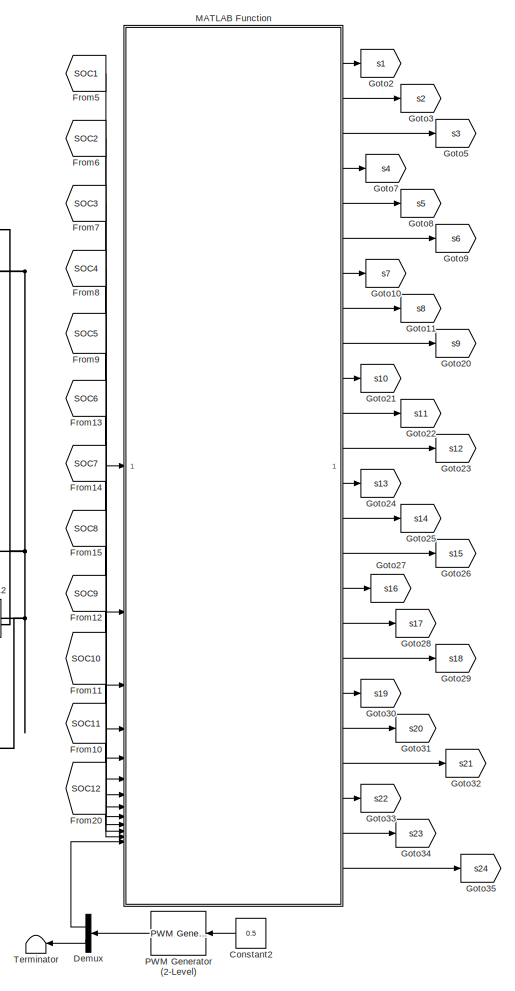
[diagram: root canvas - part 1/3, middle right region]
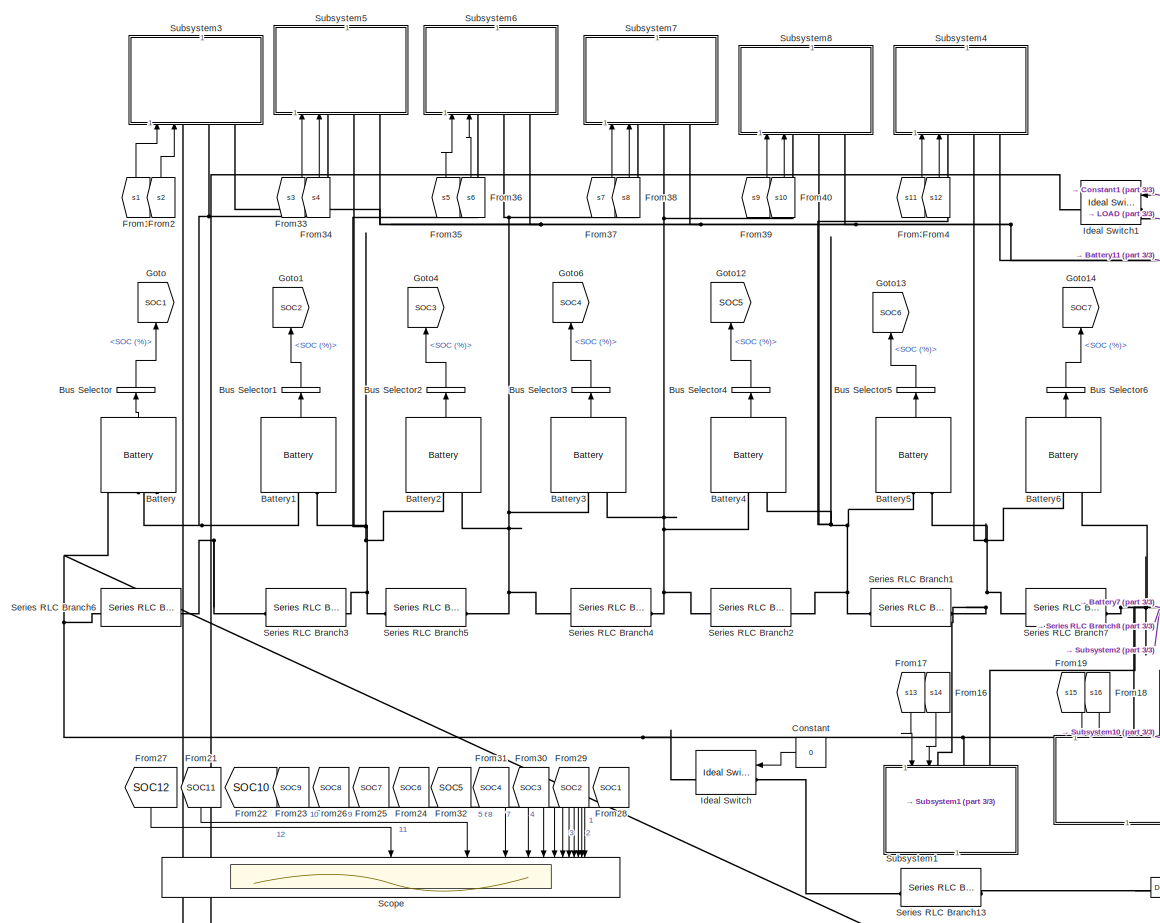
[diagram: root canvas - part 2/3, top left region]
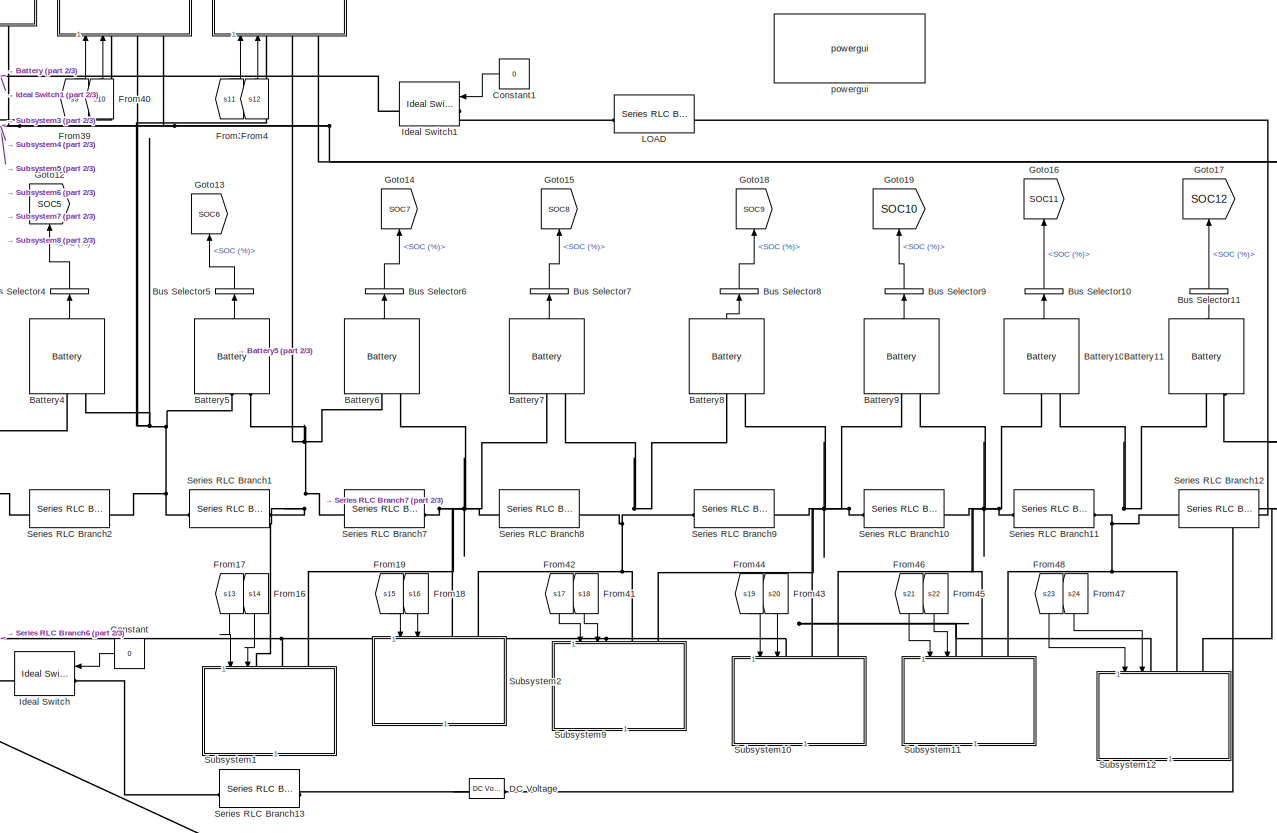
[diagram: root canvas - part 3/3, central region]
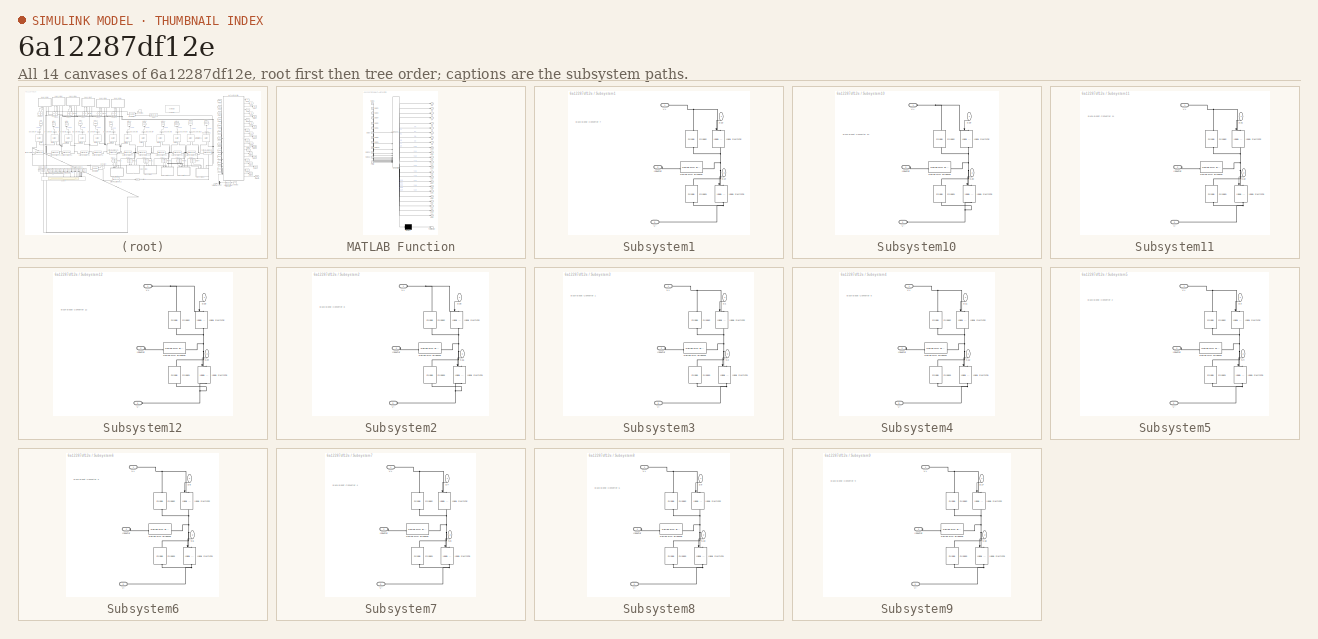
[diagram: thumbnail index - all 14 canvases of the model, root first then tree order]
MODEL slx_6a12287df12e
KIND model
CONFIG AbsTol = auto
CONFIG EnableMultiTasking = off
CONFIG FixedStep = auto
CONFIG MaxStep = 1e-4
CONFIG MinStep = 1e-5
CONFIG RelTol = 1e-3
CONFIG SampleTimeConstraint = Unconstrained
CONFIG SolverName = VariableStepAuto
CONFIG StartTime = 0.0
CONFIG StopTime = 300
BLOCK [Reference] Battery  REF=spsBatteryLib/Battery
  NameLocation = left
  SourceBlock = spsBatteryLib/Battery
  SourceType = Battery
BLOCK [Reference] Battery1  REF=spsBatteryLib/Battery
  NameLocation = left
  SourceBlock = spsBatteryLib/Battery
  SourceType = Battery
BLOCK [Reference] Battery10  REF=spsBatteryLib/Battery
  NameLocation = left
  SourceBlock = spsBatteryLib/Battery
  SourceType = Battery
BLOCK [Reference] Battery11  REF=spsBatteryLib/Battery
  NameLocation = left
  SourceBlock = spsBatteryLib/Battery
  SourceType = Battery
BLOCK [Reference] Battery2  REF=spsBatteryLib/Battery
  NameLocation = left
  SourceBlock = spsBatteryLib/Battery
  SourceType = Battery
BLOCK [Reference] Battery3  REF=spsBatteryLib/Battery
  NameLocation = left
  SourceBlock = spsBatteryLib/Battery
  SourceType = Battery
BLOCK [Reference] Battery4  REF=spsBatteryLib/Battery
  NameLocation = left
  SourceBlock = spsBatteryLib/Battery
  SourceType = Battery
BLOCK [Reference] Battery5  REF=spsBatteryLib/Battery
  NameLocation = left
  SourceBlock = spsBatteryLib/Battery
  SourceType = Battery
BLOCK [Reference] Battery6  REF=spsBatteryLib/Battery
  NameLocation = left
  SourceBlock = spsBatteryLib/Battery
  SourceType = Battery
BLOCK [Reference] Battery7  REF=spsBatteryLib/Battery
  NameLocation = left
  SourceBlock = spsBatteryLib/Battery
  SourceType = Battery
BLOCK [Reference] Battery8  REF=spsBatteryLib/Battery
  NameLocation = left
  SourceBlock = spsBatteryLib/Battery
  SourceType = Battery
BLOCK [Reference] Battery9  REF=spsBatteryLib/Battery
  NameLocation = left
  SourceBlock = spsBatteryLib/Battery
  SourceType = Battery
BLOCK [BusSelector] Bus Selector
  NameLocation = right
  OutputSignals = SOC (%)
BLOCK [BusSelector] Bus Selector1
  NameLocation = right
  OutputSignals = SOC (%)
BLOCK [BusSelector] Bus Selector10
  NameLocation = right
  OutputSignals = SOC (%)
BLOCK [BusSelector] Bus Selector11
  NameLocation = right
  OutputSignals = SOC (%)
BLOCK [BusSelector] Bus Selector2
  NameLocation = right
  OutputSignals = SOC (%)
BLOCK [BusSelector] Bus Selector3
  NameLocation = right
  OutputSignals = SOC (%)
BLOCK [BusSelector] Bus Selector4
  NameLocation = right
  OutputSignals = SOC (%)
BLOCK [BusSelector] Bus Selector5
  NameLocation = right
  OutputSignals = SOC (%)
BLOCK [BusSelector] Bus Selector6
  NameLocation = right
  OutputSignals = SOC (%)
BLOCK [BusSelector] Bus Selector7
  NameLocation = right
  OutputSignals = SOC (%)
BLOCK [BusSelector] Bus Selector8
  NameLocation = right
  OutputSignals = SOC (%)
BLOCK [BusSelector] Bus Selector9
  NameLocation = right
  OutputSignals = SOC (%)
BLOCK [Constant] Constant
  Value = 0
BLOCK [Constant] Constant1
  Value = 0
BLOCK [Constant] Constant2
  Value = 0.5
BLOCK [Reference] DC Voltage  REF=spsDCVoltageSourceLib/DC Voltage Source
  LibrarySourceBlock = sps_lib/Sources/DC Voltage Source
  NameLocation = right
  SourceBlock = spsDCVoltageSourceLib/DC Voltage Source
  SourceType = DC Voltage Source
BLOCK [Demux] Demux
  Outputs = 2
BLOCK [From] From1
  GotoTag = s1
  NameLocation = right
BLOCK [From] From10
  GotoTag = SOC11
  NameLocation = top
BLOCK [From] From11
  GotoTag = SOC10
  NameLocation = top
BLOCK [From] From12
  GotoTag = SOC9
  NameLocation = top
BLOCK [From] From13
  GotoTag = SOC6
  NameLocation = top
BLOCK [From] From14
  GotoTag = SOC7
  NameLocation = top
BLOCK [From] From15
  GotoTag = SOC8
  NameLocation = top
BLOCK [From] From16
  GotoTag = s14
  NameLocation = left
BLOCK [From] From17
  GotoTag = s13
  NameLocation = left
BLOCK [From] From18
  GotoTag = s16
  NameLocation = left
BLOCK [From] From19
  GotoTag = s15
  NameLocation = left
BLOCK [From] From2
  GotoTag = s2
  NameLocation = right
BLOCK [From] From20
  GotoTag = SOC12
  NameLocation = top
BLOCK [From] From21
  GotoTag = SOC11
  NameLocation = right
BLOCK [From] From22
  GotoTag = SOC10
  NameLocation = right
BLOCK [From] From23
  GotoTag = SOC9
  NameLocation = right
BLOCK [From] From24
  GotoTag = SOC6
  NameLocation = right
BLOCK [From] From25
  GotoTag = SOC7
  NameLocation = right
BLOCK [From] From26
  GotoTag = SOC8
  NameLocation = right
BLOCK [From] From27
  GotoTag = SOC12
  NameLocation = right
BLOCK [From] From28
  GotoTag = SOC1
  NameLocation = right
BLOCK [From] From29
  GotoTag = SOC2
  NameLocation = right
BLOCK [From] From3
  GotoTag = s11
  NameLocation = right
BLOCK [From] From30
  GotoTag = SOC3
  NameLocation = right
BLOCK [From] From31
  GotoTag = SOC4
  NameLocation = right
BLOCK [From] From32
  GotoTag = SOC5
  NameLocation = right
BLOCK [From] From33
  GotoTag = s3
  NameLocation = right
BLOCK [From] From34
  GotoTag = s4
  NameLocation = right
BLOCK [From] From35
  GotoTag = s5
  NameLocation = right
BLOCK [From] From36
  GotoTag = s6
  NameLocation = right
BLOCK [From] From37
  GotoTag = s7
  NameLocation = right
BLOCK [From] From38
  GotoTag = s8
  NameLocation = right
BLOCK [From] From39
  GotoTag = s9
  NameLocation = right
BLOCK [From] From4
  GotoTag = s12
  NameLocation = right
BLOCK [From] From40
  GotoTag = s10
  NameLocation = right
BLOCK [From] From41
  GotoTag = s18
  NameLocation = left
BLOCK [From] From42
  GotoTag = s17
  NameLocation = left
BLOCK [From] From43
  GotoTag = s20
  NameLocation = left
BLOCK [From] From44
  GotoTag = s19
  NameLocation = left
BLOCK [From] From45
  GotoTag = s22
  NameLocation = left
BLOCK [From] From46
  GotoTag = s21
  NameLocation = left
BLOCK [From] From47
  GotoTag = s24
  NameLocation = left
BLOCK [From] From48
  GotoTag = s23
  NameLocation = left
BLOCK [From] From5
  GotoTag = SOC1
  NameLocation = top
BLOCK [From] From6
  GotoTag = SOC2
  NameLocation = top
BLOCK [From] From7
  GotoTag = SOC3
  NameLocation = top
BLOCK [From] From8
  GotoTag = SOC4
  NameLocation = top
BLOCK [From] From9
  GotoTag = SOC5
  NameLocation = top
BLOCK [Goto] Goto
  GotoTag = SOC1
  NameLocation = right
BLOCK [Goto] Goto1
  GotoTag = SOC2
  NameLocation = right
BLOCK [Goto] Goto10
  GotoTag = s7
  NameLocation = top
BLOCK [Goto] Goto11
  GotoTag = s8
  NameLocation = top
BLOCK [Goto] Goto12
  GotoTag = SOC5
  NameLocation = right
BLOCK [Goto] Goto13
  GotoTag = SOC6
  NameLocation = right
BLOCK [Goto] Goto14
  GotoTag = SOC7
  NameLocation = right
BLOCK [Goto] Goto15
  GotoTag = SOC8
  NameLocation = right
BLOCK [Goto] Goto16
  GotoTag = SOC11
  NameLocation = right
BLOCK [Goto] Goto17
  GotoTag = SOC12
  NameLocation = right
BLOCK [Goto] Goto18
  GotoTag = SOC9
  NameLocation = right
BLOCK [Goto] Goto19
  GotoTag = SOC10
  NameLocation = right
BLOCK [Goto] Goto2
  GotoTag = s1
  NameLocation = top
BLOCK [Goto] Goto20
  GotoTag = s9
BLOCK [Goto] Goto21
  GotoTag = s10
BLOCK [Goto] Goto22
  GotoTag = s11
BLOCK [Goto] Goto23
  GotoTag = s12
BLOCK [Goto] Goto24
  GotoTag = s13
BLOCK [Goto] Goto25
  GotoTag = s14
BLOCK [Goto] Goto26
  GotoTag = s15
BLOCK [Goto] Goto27
  GotoTag = s16
BLOCK [Goto] Goto28
  GotoTag = s17
BLOCK [Goto] Goto29
  GotoTag = s18
BLOCK [Goto] Goto3
  GotoTag = s2
  NameLocation = top
BLOCK [Goto] Goto30
  GotoTag = s19
BLOCK [Goto] Goto31
  GotoTag = s20
BLOCK [Goto] Goto32
  GotoTag = s21
BLOCK [Goto] Goto33
  GotoTag = s22
BLOCK [Goto] Goto34
  GotoTag = s23
BLOCK [Goto] Goto35
  GotoTag = s24
BLOCK [Goto] Goto4
  GotoTag = SOC3
  NameLocation = right
BLOCK [Goto] Goto5
  GotoTag = s3
  NameLocation = top
BLOCK [Goto] Goto6
  GotoTag = SOC4
  NameLocation = right
BLOCK [Goto] Goto7
  GotoTag = s4
  NameLocation = top
BLOCK [Goto] Goto8
  GotoTag = s5
  NameLocation = top
BLOCK [Goto] Goto9
  GotoTag = s6
  NameLocation = top
BLOCK [Reference] Ideal Switch  REF=spsIdealSwitchLib/Ideal Switch
  LibrarySourceBlock = sps_lib/Power Electronics/Ideal Switch
  SourceBlock = spsIdealSwitchLib/Ideal Switch
  SourceType = Ideal Switch
BLOCK [Reference] Ideal Switch1  REF=spsIdealSwitchLib/Ideal Switch
  LibrarySourceBlock = sps_lib/Power Electronics/Ideal Switch
  SourceBlock = spsIdealSwitchLib/Ideal Switch
  SourceType = Ideal Switch
BLOCK [Reference] LOAD  REF=spsSeriesRLCBranchLib/Series RLC Branch
  NameLocation = top
  SourceBlock = spsSeriesRLCBranchLib/Series RLC Branch
  SourceType = Series RLC Branch
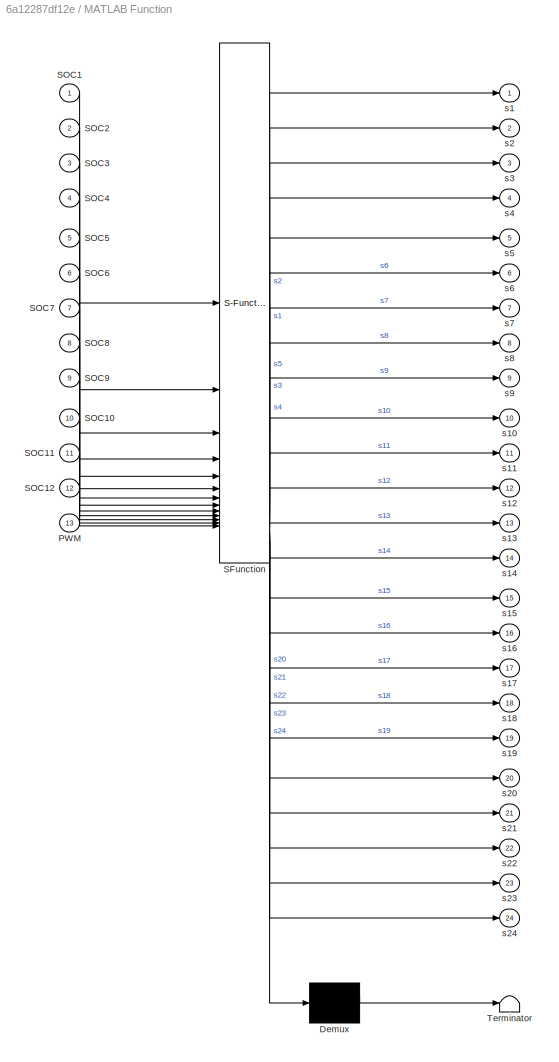
BLOCK [SubSystem] MATLAB Function
  ErrorFcn = Stateflow.Translate.translate
  NameLocation = top
  PermitHierarchicalResolution = ExplicitOnly
  SFBlockType = MATLAB Function
  TreatAsAtomicUnit = on
BLOCK [Demux] MATLAB Function/ Demux 
  Outputs = 1
BLOCK [S-Function] MATLAB Function/ SFunction 
  EnableBusSupport = on
  FunctionName = sf_sfun
  PortCounts = [13 25]
  SFcnIsStateOwnerBlock = off
  SFunctionDeploymentMode = off
  Tag = Stateflow S-Function 2
BLOCK [Terminator] MATLAB Function/ Terminator 
BLOCK [Inport] MATLAB Function/PWM
  Port = 13
BLOCK [Inport] MATLAB Function/SOC1
BLOCK [Inport] MATLAB Function/SOC10
  Port = 10
BLOCK [Inport] MATLAB Function/SOC11
  Port = 11
BLOCK [Inport] MATLAB Function/SOC12
  Port = 12
BLOCK [Inport] MATLAB Function/SOC2
  Port = 2
BLOCK [Inport] MATLAB Function/SOC3
  Port = 3
BLOCK [Inport] MATLAB Function/SOC4
  Port = 4
BLOCK [Inport] MATLAB Function/SOC5
  Port = 5
BLOCK [Inport] MATLAB Function/SOC6
  Port = 6
BLOCK [Inport] MATLAB Function/SOC7
  Port = 7
BLOCK [Inport] MATLAB Function/SOC8
  Port = 8
BLOCK [Inport] MATLAB Function/SOC9
  Port = 9
BLOCK [Outport] MATLAB Function/s1
BLOCK [Outport] MATLAB Function/s10
  Port = 10
BLOCK [Outport] MATLAB Function/s11
  Port = 11
BLOCK [Outport] MATLAB Function/s12
  Port = 12
BLOCK [Outport] MATLAB Function/s13
  Port = 13
BLOCK [Outport] MATLAB Function/s14
  Port = 14
BLOCK [Outport] MATLAB Function/s15
  Port = 15
BLOCK [Outport] MATLAB Function/s16
  Port = 16
BLOCK [Outport] MATLAB Function/s17
  Port = 17
BLOCK [Outport] MATLAB Function/s18
  Port = 18
BLOCK [Outport] MATLAB Function/s19
  Port = 19
BLOCK [Outport] MATLAB Function/s2
  Port = 2
BLOCK [Outport] MATLAB Function/s20
  Port = 20
BLOCK [Outport] MATLAB Function/s21
  Port = 21
BLOCK [Outport] MATLAB Function/s22
  Port = 22
BLOCK [Outport] MATLAB Function/s23
  Port = 23
BLOCK [Outport] MATLAB Function/s24
  Port = 24
BLOCK [Outport] MATLAB Function/s3
  Port = 3
BLOCK [Outport] MATLAB Function/s4
  Port = 4
BLOCK [Outport] MATLAB Function/s5
  Port = 5
BLOCK [Outport] MATLAB Function/s6
  Port = 6
BLOCK [Outport] MATLAB Function/s7
  Port = 7
BLOCK [Outport] MATLAB Function/s8
  Port = 8
BLOCK [Outport] MATLAB Function/s9
  Port = 9
BLOCK [Reference] PWM Generator (2-Level)  REF=spsPWMGenerator2LevelLib/PWM Generator
(2-Level)
  SourceBlock = spsPWMGenerator2LevelLib/PWM Generator\n(2-Level)
  SourceType = PWM Generator (2-Level)
BLOCK [Scope] Scope
  Floating = off
  NameLocation = left
  NumInputPorts = 12
  ScopeSpecificationString = Simulink.scopes.TimeScopeBlockCfg('CurrentConfiguration', extmgr.ConfigurationSet(extmgr.Configuration('Core','General UI',true,'FigureColor',[1 1 1],'DisplayFullSourceName',true),extmgr.Configuration('Core','Source UI',true),extmgr.Configuration('Sources','WiredSimulink',true),extmgr.Configuration('Visuals','Time Domain',true,'SerializedDisplays',{struct('MinYLimReal','0','MaxYLimReal','100','YLa...<+3124ch>
BLOCK [Reference] Series RLC Branch1  REF=spsSeriesRLCBranchLib/Series RLC Branch
  NameLocation = top
  SourceBlock = spsSeriesRLCBranchLib/Series RLC Branch
  SourceType = Series RLC Branch
BLOCK [Reference] Series RLC Branch10  REF=spsSeriesRLCBranchLib/Series RLC Branch
  NameLocation = top
  SourceBlock = spsSeriesRLCBranchLib/Series RLC Branch
  SourceType = Series RLC Branch
BLOCK [Reference] Series RLC Branch11  REF=spsSeriesRLCBranchLib/Series RLC Branch
  NameLocation = top
  SourceBlock = spsSeriesRLCBranchLib/Series RLC Branch
  SourceType = Series RLC Branch
BLOCK [Reference] Series RLC Branch12  REF=spsSeriesRLCBranchLib/Series RLC Branch
  NameLocation = top
  SourceBlock = spsSeriesRLCBranchLib/Series RLC Branch
  SourceType = Series RLC Branch
BLOCK [Reference] Series RLC Branch13  REF=spsSeriesRLCBranchLib/Series RLC Branch
  NameLocation = top
  SourceBlock = spsSeriesRLCBranchLib/Series RLC Branch
  SourceType = Series RLC Branch
BLOCK [Reference] Series RLC Branch2  REF=spsSeriesRLCBranchLib/Series RLC Branch
  NameLocation = top
  SourceBlock = spsSeriesRLCBranchLib/Series RLC Branch
  SourceType = Series RLC Branch
BLOCK [Reference] Series RLC Branch3  REF=spsSeriesRLCBranchLib/Series RLC Branch
  NameLocation = top
  SourceBlock = spsSeriesRLCBranchLib/Series RLC Branch
  SourceType = Series RLC Branch
BLOCK [Reference] Series RLC Branch4  REF=spsSeriesRLCBranchLib/Series RLC Branch
  NameLocation = top
  SourceBlock = spsSeriesRLCBranchLib/Series RLC Branch
  SourceType = Series RLC Branch
BLOCK [Reference] Series RLC Branch5  REF=spsSeriesRLCBranchLib/Series RLC Branch
  NameLocation = top
  SourceBlock = spsSeriesRLCBranchLib/Series RLC Branch
  SourceType = Series RLC Branch
BLOCK [Reference] Series RLC Branch6  REF=spsSeriesRLCBranchLib/Series RLC Branch
  NameLocation = top
  SourceBlock = spsSeriesRLCBranchLib/Series RLC Branch
  SourceType = Series RLC Branch
BLOCK [Reference] Series RLC Branch7  REF=spsSeriesRLCBranchLib/Series RLC Branch
  NameLocation = top
  SourceBlock = spsSeriesRLCBranchLib/Series RLC Branch
  SourceType = Series RLC Branch
BLOCK [Reference] Series RLC Branch8  REF=spsSeriesRLCBranchLib/Series RLC Branch
  NameLocation = top
  SourceBlock = spsSeriesRLCBranchLib/Series RLC Branch
  SourceType = Series RLC Branch
BLOCK [Reference] Series RLC Branch9  REF=spsSeriesRLCBranchLib/Series RLC Branch
  NameLocation = top
  SourceBlock = spsSeriesRLCBranchLib/Series RLC Branch
  SourceType = Series RLC Branch
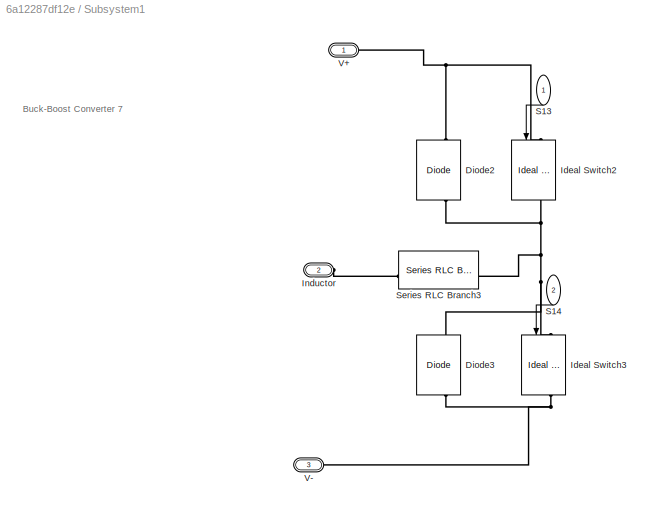
BLOCK [SubSystem] Subsystem1
  NameLocation = left
BLOCK [Reference] Subsystem1/Diode2  REF=spsDiodeLib/Diode
  NameLocation = right
  SourceBlock = spsDiodeLib/Diode
  SourceType = Diode
BLOCK [Reference] Subsystem1/Diode3  REF=spsDiodeLib/Diode
  NameLocation = right
  SourceBlock = spsDiodeLib/Diode
  SourceType = Diode
BLOCK [Reference] Subsystem1/Ideal Switch2  REF=spsIdealSwitchLib/Ideal Switch
  NameLocation = left
  SourceBlock = spsIdealSwitchLib/Ideal Switch
  SourceType = Ideal Switch
BLOCK [Reference] Subsystem1/Ideal Switch3  REF=spsIdealSwitchLib/Ideal Switch
  NameLocation = left
  SourceBlock = spsIdealSwitchLib/Ideal Switch
  SourceType = Ideal Switch
BLOCK [PMIOPort] Subsystem1/Inductor
  Port = 2
  Side = Left
BLOCK [Inport] Subsystem1/S13
  NameLocation = left
BLOCK [Inport] Subsystem1/S14
  NameLocation = left
  Port = 2
BLOCK [Reference] Subsystem1/Series RLC Branch3  REF=spsSeriesRLCBranchLib/Series RLC Branch
  SourceBlock = spsSeriesRLCBranchLib/Series RLC Branch
  SourceType = Series RLC Branch
BLOCK [PMIOPort] Subsystem1/V+
  Side = Left
BLOCK [PMIOPort] Subsystem1/V-
  Port = 3
  Side = Left
BLOCK [SubSystem] Subsystem10
  NameLocation = left
BLOCK [Reference] Subsystem10/Diode2  REF=spsDiodeLib/Diode
  NameLocation = right
  SourceBlock = spsDiodeLib/Diode
  SourceType = Diode
BLOCK [Reference] Subsystem10/Diode3  REF=spsDiodeLib/Diode
  NameLocation = right
  SourceBlock = spsDiodeLib/Diode
  SourceType = Diode
BLOCK [Reference] Subsystem10/Ideal Switch2  REF=spsIdealSwitchLib/Ideal Switch
  NameLocation = left
  SourceBlock = spsIdealSwitchLib/Ideal Switch
  SourceType = Ideal Switch
BLOCK [Reference] Subsystem10/Ideal Switch3  REF=spsIdealSwitchLib/Ideal Switch
  NameLocation = left
  SourceBlock = spsIdealSwitchLib/Ideal Switch
  SourceType = Ideal Switch
BLOCK [PMIOPort] Subsystem10/Inductor
  Port = 2
  Side = Left
BLOCK [Inport] Subsystem10/S19
  NameLocation = left
BLOCK [Inport] Subsystem10/S20
  NameLocation = left
  Port = 2
BLOCK [Reference] Subsystem10/Series RLC Branch3  REF=spsSeriesRLCBranchLib/Series RLC Branch
  SourceBlock = spsSeriesRLCBranchLib/Series RLC Branch
  SourceType = Series RLC Branch
BLOCK [PMIOPort] Subsystem10/V+
  Side = Left
BLOCK [PMIOPort] Subsystem10/V-
  Port = 3
  Side = Left
BLOCK [SubSystem] Subsystem11
  NameLocation = left
BLOCK [Reference] Subsystem11/Diode2  REF=spsDiodeLib/Diode
  NameLocation = right
  SourceBlock = spsDiodeLib/Diode
  SourceType = Diode
BLOCK [Reference] Subsystem11/Diode3  REF=spsDiodeLib/Diode
  NameLocation = right
  SourceBlock = spsDiodeLib/Diode
  SourceType = Diode
BLOCK [Reference] Subsystem11/Ideal Switch2  REF=spsIdealSwitchLib/Ideal Switch
  NameLocation = left
  SourceBlock = spsIdealSwitchLib/Ideal Switch
  SourceType = Ideal Switch
BLOCK [Reference] Subsystem11/Ideal Switch3  REF=spsIdealSwitchLib/Ideal Switch
  NameLocation = left
  SourceBlock = spsIdealSwitchLib/Ideal Switch
  SourceType = Ideal Switch
BLOCK [PMIOPort] Subsystem11/Inductor
  Port = 2
  Side = Left
BLOCK [Inport] Subsystem11/S21
  NameLocation = left
BLOCK [Inport] Subsystem11/S22
  NameLocation = left
  Port = 2
BLOCK [Reference] Subsystem11/Series RLC Branch3  REF=spsSeriesRLCBranchLib/Series RLC Branch
  SourceBlock = spsSeriesRLCBranchLib/Series RLC Branch
  SourceType = Series RLC Branch
BLOCK [PMIOPort] Subsystem11/V+
  Side = Left
BLOCK [PMIOPort] Subsystem11/V-
  Port = 3
  Side = Left
BLOCK [SubSystem] Subsystem12
  NameLocation = left
BLOCK [Reference] Subsystem12/Diode2  REF=spsDiodeLib/Diode
  NameLocation = right
  SourceBlock = spsDiodeLib/Diode
  SourceType = Diode
BLOCK [Reference] Subsystem12/Diode3  REF=spsDiodeLib/Diode
  NameLocation = right
  SourceBlock = spsDiodeLib/Diode
  SourceType = Diode
BLOCK [Reference] Subsystem12/Ideal Switch2  REF=spsIdealSwitchLib/Ideal Switch
  NameLocation = left
  SourceBlock = spsIdealSwitchLib/Ideal Switch
  SourceType = Ideal Switch
BLOCK [Reference] Subsystem12/Ideal Switch3  REF=spsIdealSwitchLib/Ideal Switch
  NameLocation = left
  SourceBlock = spsIdealSwitchLib/Ideal Switch
  SourceType = Ideal Switch
BLOCK [PMIOPort] Subsystem12/Inductor
  Port = 2
  Side = Left
BLOCK [Inport] Subsystem12/S23
  NameLocation = left
BLOCK [Inport] Subsystem12/S24
  NameLocation = left
  Port = 2
BLOCK [Reference] Subsystem12/Series RLC Branch3  REF=spsSeriesRLCBranchLib/Series RLC Branch
  SourceBlock = spsSeriesRLCBranchLib/Series RLC Branch
  SourceType = Series RLC Branch
BLOCK [PMIOPort] Subsystem12/V+
  Side = Left
BLOCK [PMIOPort] Subsystem12/V-
  Port = 3
  Side = Left
BLOCK [SubSystem] Subsystem2
  NameLocation = left
BLOCK [Reference] Subsystem2/Diode2  REF=spsDiodeLib/Diode
  NameLocation = right
  SourceBlock = spsDiodeLib/Diode
  SourceType = Diode
BLOCK [Reference] Subsystem2/Diode3  REF=spsDiodeLib/Diode
  NameLocation = right
  SourceBlock = spsDiodeLib/Diode
  SourceType = Diode
BLOCK [Reference] Subsystem2/Ideal Switch2  REF=spsIdealSwitchLib/Ideal Switch
  NameLocation = left
  SourceBlock = spsIdealSwitchLib/Ideal Switch
  SourceType = Ideal Switch
BLOCK [Reference] Subsystem2/Ideal Switch3  REF=spsIdealSwitchLib/Ideal Switch
  NameLocation = left
  SourceBlock = spsIdealSwitchLib/Ideal Switch
  SourceType = Ideal Switch
BLOCK [PMIOPort] Subsystem2/Inductor
  Port = 2
  Side = Left
BLOCK [Inport] Subsystem2/S15
  NameLocation = left
BLOCK [Inport] Subsystem2/S16
  NameLocation = left
  Port = 2
BLOCK [Reference] Subsystem2/Series RLC Branch3  REF=spsSeriesRLCBranchLib/Series RLC Branch
  SourceBlock = spsSeriesRLCBranchLib/Series RLC Branch
  SourceType = Series RLC Branch
BLOCK [PMIOPort] Subsystem2/V+
  Side = Left
BLOCK [PMIOPort] Subsystem2/V-
  Port = 3
  Side = Left
BLOCK [SubSystem] Subsystem3
  NameLocation = right
BLOCK [Reference] Subsystem3/Diode2  REF=spsDiodeLib/Diode
  NameLocation = right
  SourceBlock = spsDiodeLib/Diode
  SourceType = Diode
BLOCK [Reference] Subsystem3/Diode3  REF=spsDiodeLib/Diode
  NameLocation = right
  SourceBlock = spsDiodeLib/Diode
  SourceType = Diode
BLOCK [Reference] Subsystem3/Ideal Switch2  REF=spsIdealSwitchLib/Ideal Switch
  NameLocation = left
  SourceBlock = spsIdealSwitchLib/Ideal Switch
  SourceType = Ideal Switch
BLOCK [Reference] Subsystem3/Ideal Switch3  REF=spsIdealSwitchLib/Ideal Switch
  NameLocation = left
  SourceBlock = spsIdealSwitchLib/Ideal Switch
  SourceType = Ideal Switch
BLOCK [PMIOPort] Subsystem3/Inductor
  Port = 2
  Side = Left
BLOCK [Inport] Subsystem3/S1
  NameLocation = left
BLOCK [Inport] Subsystem3/S2
  NameLocation = left
  Port = 2
BLOCK [Reference] Subsystem3/Series RLC Branch3  REF=spsSeriesRLCBranchLib/Series RLC Branch
  SourceBlock = spsSeriesRLCBranchLib/Series RLC Branch
  SourceType = Series RLC Branch
BLOCK [PMIOPort] Subsystem3/V+
  Side = Left
BLOCK [PMIOPort] Subsystem3/V-
  Port = 3
  Side = Left
BLOCK [SubSystem] Subsystem4
  NameLocation = right
BLOCK [Reference] Subsystem4/Diode2  REF=spsDiodeLib/Diode
  NameLocation = right
  SourceBlock = spsDiodeLib/Diode
  SourceType = Diode
BLOCK [Reference] Subsystem4/Diode3  REF=spsDiodeLib/Diode
  NameLocation = right
  SourceBlock = spsDiodeLib/Diode
  SourceType = Diode
BLOCK [Reference] Subsystem4/Ideal Switch2  REF=spsIdealSwitchLib/Ideal Switch
  NameLocation = left
  SourceBlock = spsIdealSwitchLib/Ideal Switch
  SourceType = Ideal Switch
BLOCK [Reference] Subsystem4/Ideal Switch3  REF=spsIdealSwitchLib/Ideal Switch
  NameLocation = left
  SourceBlock = spsIdealSwitchLib/Ideal Switch
  SourceType = Ideal Switch
BLOCK [PMIOPort] Subsystem4/Inductor
  Port = 2
  Side = Left
BLOCK [Inport] Subsystem4/S11
  NameLocation = left
BLOCK [Inport] Subsystem4/S12
  NameLocation = left
  Port = 2
BLOCK [Reference] Subsystem4/Series RLC Branch3  REF=spsSeriesRLCBranchLib/Series RLC Branch
  SourceBlock = spsSeriesRLCBranchLib/Series RLC Branch
  SourceType = Series RLC Branch
BLOCK [PMIOPort] Subsystem4/V+
  Side = Left
BLOCK [PMIOPort] Subsystem4/V-
  Port = 3
  Side = Left
BLOCK [SubSystem] Subsystem5
  NameLocation = right
BLOCK [Reference] Subsystem5/Diode2  REF=spsDiodeLib/Diode
  NameLocation = right
  SourceBlock = spsDiodeLib/Diode
  SourceType = Diode
BLOCK [Reference] Subsystem5/Diode3  REF=spsDiodeLib/Diode
  NameLocation = right
  SourceBlock = spsDiodeLib/Diode
  SourceType = Diode
BLOCK [Reference] Subsystem5/Ideal Switch2  REF=spsIdealSwitchLib/Ideal Switch
  NameLocation = left
  SourceBlock = spsIdealSwitchLib/Ideal Switch
  SourceType = Ideal Switch
BLOCK [Reference] Subsystem5/Ideal Switch3  REF=spsIdealSwitchLib/Ideal Switch
  NameLocation = left
  SourceBlock = spsIdealSwitchLib/Ideal Switch
  SourceType = Ideal Switch
BLOCK [PMIOPort] Subsystem5/Inductor
  Port = 2
  Side = Left
BLOCK [Inport] Subsystem5/S3
  NameLocation = left
BLOCK [Inport] Subsystem5/S4
  NameLocation = left
  Port = 2
BLOCK [Reference] Subsystem5/Series RLC Branch3  REF=spsSeriesRLCBranchLib/Series RLC Branch
  SourceBlock = spsSeriesRLCBranchLib/Series RLC Branch
  SourceType = Series RLC Branch
BLOCK [PMIOPort] Subsystem5/V+
  Side = Left
BLOCK [PMIOPort] Subsystem5/V-
  Port = 3
  Side = Left
BLOCK [SubSystem] Subsystem6
  NameLocation = right
BLOCK [Reference] Subsystem6/Diode2  REF=spsDiodeLib/Diode
  NameLocation = right
  SourceBlock = spsDiodeLib/Diode
  SourceType = Diode
BLOCK [Reference] Subsystem6/Diode3  REF=spsDiodeLib/Diode
  NameLocation = right
  SourceBlock = spsDiodeLib/Diode
  SourceType = Diode
BLOCK [Reference] Subsystem6/Ideal Switch2  REF=spsIdealSwitchLib/Ideal Switch
  NameLocation = left
  SourceBlock = spsIdealSwitchLib/Ideal Switch
  SourceType = Ideal Switch
BLOCK [Reference] Subsystem6/Ideal Switch3  REF=spsIdealSwitchLib/Ideal Switch
  NameLocation = left
  SourceBlock = spsIdealSwitchLib/Ideal Switch
  SourceType = Ideal Switch
BLOCK [PMIOPort] Subsystem6/Inductor
  Port = 2
  Side = Left
BLOCK [Inport] Subsystem6/S5
  NameLocation = left
BLOCK [Inport] Subsystem6/S6
  NameLocation = left
  Port = 2
BLOCK [Reference] Subsystem6/Series RLC Branch3  REF=spsSeriesRLCBranchLib/Series RLC Branch
  SourceBlock = spsSeriesRLCBranchLib/Series RLC Branch
  SourceType = Series RLC Branch
BLOCK [PMIOPort] Subsystem6/V+
  Side = Left
BLOCK [PMIOPort] Subsystem6/V-
  Port = 3
  Side = Left
BLOCK [SubSystem] Subsystem7
  NameLocation = right
BLOCK [Reference] Subsystem7/Diode2  REF=spsDiodeLib/Diode
  NameLocation = right
  SourceBlock = spsDiodeLib/Diode
  SourceType = Diode
BLOCK [Reference] Subsystem7/Diode3  REF=spsDiodeLib/Diode
  NameLocation = right
  SourceBlock = spsDiodeLib/Diode
  SourceType = Diode
BLOCK [Reference] Subsystem7/Ideal Switch2  REF=spsIdealSwitchLib/Ideal Switch
  NameLocation = left
  SourceBlock = spsIdealSwitchLib/Ideal Switch
  SourceType = Ideal Switch
BLOCK [Reference] Subsystem7/Ideal Switch3  REF=spsIdealSwitchLib/Ideal Switch
  NameLocation = left
  SourceBlock = spsIdealSwitchLib/Ideal Switch
  SourceType = Ideal Switch
BLOCK [PMIOPort] Subsystem7/Inductor
  Port = 2
  Side = Left
BLOCK [Inport] Subsystem7/S7
  NameLocation = left
BLOCK [Inport] Subsystem7/S8
  NameLocation = left
  Port = 2
BLOCK [Reference] Subsystem7/Series RLC Branch3  REF=spsSeriesRLCBranchLib/Series RLC Branch
  SourceBlock = spsSeriesRLCBranchLib/Series RLC Branch
  SourceType = Series RLC Branch
BLOCK [PMIOPort] Subsystem7/V+
  Side = Left
BLOCK [PMIOPort] Subsystem7/V-
  Port = 3
  Side = Left
BLOCK [SubSystem] Subsystem8
  NameLocation = right
BLOCK [Reference] Subsystem8/Diode2  REF=spsDiodeLib/Diode
  NameLocation = right
  SourceBlock = spsDiodeLib/Diode
  SourceType = Diode
BLOCK [Reference] Subsystem8/Diode3  REF=spsDiodeLib/Diode
  NameLocation = right
  SourceBlock = spsDiodeLib/Diode
  SourceType = Diode
BLOCK [Reference] Subsystem8/Ideal Switch2  REF=spsIdealSwitchLib/Ideal Switch
  NameLocation = left
  SourceBlock = spsIdealSwitchLib/Ideal Switch
  SourceType = Ideal Switch
BLOCK [Reference] Subsystem8/Ideal Switch3  REF=spsIdealSwitchLib/Ideal Switch
  NameLocation = left
  SourceBlock = spsIdealSwitchLib/Ideal Switch
  SourceType = Ideal Switch
BLOCK [PMIOPort] Subsystem8/Inductor
  Port = 2
  Side = Left
BLOCK [Inport] Subsystem8/S10
  NameLocation = left
  Port = 2
BLOCK [Inport] Subsystem8/S9
  NameLocation = left
BLOCK [Reference] Subsystem8/Series RLC Branch3  REF=spsSeriesRLCBranchLib/Series RLC Branch
  SourceBlock = spsSeriesRLCBranchLib/Series RLC Branch
  SourceType = Series RLC Branch
BLOCK [PMIOPort] Subsystem8/V+
  Side = Left
BLOCK [PMIOPort] Subsystem8/V-
  Port = 3
  Side = Left
BLOCK [SubSystem] Subsystem9
  NameLocation = left
BLOCK [Reference] Subsystem9/Diode2  REF=spsDiodeLib/Diode
  NameLocation = right
  SourceBlock = spsDiodeLib/Diode
  SourceType = Diode
BLOCK [Reference] Subsystem9/Diode3  REF=spsDiodeLib/Diode
  NameLocation = right
  SourceBlock = spsDiodeLib/Diode
  SourceType = Diode
BLOCK [Reference] Subsystem9/Ideal Switch2  REF=spsIdealSwitchLib/Ideal Switch
  NameLocation = left
  SourceBlock = spsIdealSwitchLib/Ideal Switch
  SourceType = Ideal Switch
BLOCK [Reference] Subsystem9/Ideal Switch3  REF=spsIdealSwitchLib/Ideal Switch
  NameLocation = left
  SourceBlock = spsIdealSwitchLib/Ideal Switch
  SourceType = Ideal Switch
BLOCK [PMIOPort] Subsystem9/Inductor
  Port = 2
  Side = Left
BLOCK [Inport] Subsystem9/S17
  NameLocation = left
BLOCK [Inport] Subsystem9/S18
  NameLocation = left
  Port = 2
BLOCK [Reference] Subsystem9/Series RLC Branch3  REF=spsSeriesRLCBranchLib/Series RLC Branch
  SourceBlock = spsSeriesRLCBranchLib/Series RLC Branch
  SourceType = Series RLC Branch
BLOCK [PMIOPort] Subsystem9/V+
  Side = Left
BLOCK [PMIOPort] Subsystem9/V-
  Port = 3
  Side = Left
BLOCK [Terminator] Terminator
BLOCK [Reference] powergui  REF=sps_lib/powergui
  LibrarySourceBlock = sps_lib/powergui
  Priority = 1
  SourceBlock = sps_lib/powergui
  SourceType = PSB option menu block
ANNOTATION Subsystem1: Buck-Boost Converter 7
ANNOTATION Subsystem10: Buck-Boost Converter 10
ANNOTATION Subsystem11: Buck-Boost Converter 11
ANNOTATION Subsystem12: Buck-Boost Converter 12
ANNOTATION Subsystem2: Buck-Boost Converter 8
ANNOTATION Subsystem3: Buck-Boost Converter 1
ANNOTATION Subsystem4: Buck-Boost Converter 6
ANNOTATION Subsystem5: Buck-Boost Converter 2
ANNOTATION Subsystem6: Buck-Boost Converter 3
ANNOTATION Subsystem7: Buck-Boost Converter 4
ANNOTATION Subsystem8: Buck-Boost Converter 5
ANNOTATION Subsystem9: Buck-Boost Converter 9
LINE Battery10:1 -> Bus Selector10:1
LINE Battery11:1 -> Bus Selector11:1
LINE Battery1:1 -> Bus Selector1:1
LINE Battery2:1 -> Bus Selector2:1
LINE Battery3:1 -> Bus Selector3:1
LINE Battery4:1 -> Bus Selector4:1
LINE Battery5:1 -> Bus Selector5:1
LINE Battery6:1 -> Bus Selector6:1
LINE Battery7:1 -> Bus Selector7:1
LINE Battery8:1 -> Bus Selector8:1
LINE Battery9:1 -> Bus Selector9:1
LINE Battery:1 -> Bus Selector:1
LINE Bus Selector10:1 -> Goto16:1
LINE Bus Selector11:1 -> Goto17:1
LINE Bus Selector1:1 -> Goto1:1
LINE Bus Selector2:1 -> Goto4:1
LINE Bus Selector3:1 -> Goto6:1
LINE Bus Selector4:1 -> Goto12:1
LINE Bus Selector5:1 -> Goto13:1
LINE Bus Selector6:1 -> Goto14:1
LINE Bus Selector7:1 -> Goto15:1
LINE Bus Selector8:1 -> Goto18:1
LINE Bus Selector9:1 -> Goto19:1
LINE Bus Selector:1 -> Goto:1
LINE Constant1:1 -> Ideal Switch1:1
LINE Constant2:1 -> PWM Generator (2-Level):1
LINE Constant:1 -> Ideal Switch:1
LINE Demux:1 -> MATLAB Function:13
LINE Demux:2 -> Terminator:1
LINE From10:1 -> MATLAB Function:11
LINE From11:1 -> MATLAB Function:10
LINE From12:1 -> MATLAB Function:9
LINE From13:1 -> MATLAB Function:6
LINE From14:1 -> MATLAB Function:7
LINE From15:1 -> MATLAB Function:8
LINE From16:1 -> Subsystem1:2
LINE From17:1 -> Subsystem1:1
LINE From18:1 -> Subsystem2:2
LINE From19:1 -> Subsystem2:1
LINE From1:1 -> Subsystem3:1
LINE From20:1 -> MATLAB Function:12
LINE From21:1 -> Scope:2
LINE From22:1 -> Scope:3
LINE From23:1 -> Scope:4
LINE From24:1 -> Scope:7
LINE From25:1 -> Scope:6
LINE From26:1 -> Scope:5
LINE From27:1 -> Scope:1
LINE From28:1 -> Scope:12
LINE From29:1 -> Scope:11
LINE From2:1 -> Subsystem3:2
LINE From30:1 -> Scope:10
LINE From31:1 -> Scope:9
LINE From32:1 -> Scope:8
LINE From33:1 -> Subsystem5:1
LINE From34:1 -> Subsystem5:2
LINE From35:1 -> Subsystem6:1
LINE From36:1 -> Subsystem6:2
LINE From37:1 -> Subsystem7:1
LINE From38:1 -> Subsystem7:2
LINE From39:1 -> Subsystem8:1
LINE From3:1 -> Subsystem4:1
LINE From40:1 -> Subsystem8:2
LINE From41:1 -> Subsystem9:2
LINE From42:1 -> Subsystem9:1
LINE From43:1 -> Subsystem10:2
LINE From44:1 -> Subsystem10:1
LINE From45:1 -> Subsystem11:2
LINE From46:1 -> Subsystem11:1
LINE From47:1 -> Subsystem12:2
LINE From48:1 -> Subsystem12:1
LINE From4:1 -> Subsystem4:2
LINE From5:1 -> MATLAB Function:1
LINE From6:1 -> MATLAB Function:2
LINE From7:1 -> MATLAB Function:3
LINE From8:1 -> MATLAB Function:4
LINE From9:1 -> MATLAB Function:5
LINE MATLAB Function:1 -> Goto2:1
LINE MATLAB Function:10 -> Goto21:1
LINE MATLAB Function:11 -> Goto22:1
LINE MATLAB Function:12 -> Goto23:1
LINE MATLAB Function:13 -> Goto24:1
LINE MATLAB Function:14 -> Goto25:1
LINE MATLAB Function:15 -> Goto26:1
LINE MATLAB Function:16 -> Goto27:1
LINE MATLAB Function:17 -> Goto28:1
LINE MATLAB Function:18 -> Goto29:1
LINE MATLAB Function:19 -> Goto30:1
LINE MATLAB Function:2 -> Goto3:1
LINE MATLAB Function:20 -> Goto31:1
LINE MATLAB Function:21 -> Goto32:1
LINE MATLAB Function:22 -> Goto33:1
LINE MATLAB Function:23 -> Goto34:1
LINE MATLAB Function:24 -> Goto35:1
LINE MATLAB Function:3 -> Goto5:1
LINE MATLAB Function:4 -> Goto7:1
LINE MATLAB Function:5 -> Goto8:1
LINE MATLAB Function:6 -> Goto9:1
LINE MATLAB Function:7 -> Goto10:1
LINE MATLAB Function:8 -> Goto11:1
LINE MATLAB Function:9 -> Goto20:1
LINE PWM Generator (2-Level):1 -> Demux:1
LINE Subsystem1/S13:1 -> Subsystem1/Ideal Switch2:1
LINE Subsystem1/S14:1 -> Subsystem1/Ideal Switch3:1
LINE Subsystem10/S19:1 -> Subsystem10/Ideal Switch2:1
LINE Subsystem10/S20:1 -> Subsystem10/Ideal Switch3:1
LINE Subsystem11/S21:1 -> Subsystem11/Ideal Switch2:1
LINE Subsystem11/S22:1 -> Subsystem11/Ideal Switch3:1
LINE Subsystem12/S23:1 -> Subsystem12/Ideal Switch2:1
LINE Subsystem12/S24:1 -> Subsystem12/Ideal Switch3:1
LINE Subsystem2/S15:1 -> Subsystem2/Ideal Switch2:1
LINE Subsystem2/S16:1 -> Subsystem2/Ideal Switch3:1
LINE Subsystem3/S1:1 -> Subsystem3/Ideal Switch2:1
LINE Subsystem3/S2:1 -> Subsystem3/Ideal Switch3:1
LINE Subsystem4/S11:1 -> Subsystem4/Ideal Switch2:1
LINE Subsystem4/S12:1 -> Subsystem4/Ideal Switch3:1
LINE Subsystem5/S3:1 -> Subsystem5/Ideal Switch2:1
LINE Subsystem5/S4:1 -> Subsystem5/Ideal Switch3:1
LINE Subsystem6/S5:1 -> Subsystem6/Ideal Switch2:1
LINE Subsystem6/S6:1 -> Subsystem6/Ideal Switch3:1
LINE Subsystem7/S7:1 -> Subsystem7/Ideal Switch2:1
LINE Subsystem7/S8:1 -> Subsystem7/Ideal Switch3:1
LINE Subsystem8/S10:1 -> Subsystem8/Ideal Switch3:1
LINE Subsystem8/S9:1 -> Subsystem8/Ideal Switch2:1
LINE Subsystem9/S17:1 -> Subsystem9/Ideal Switch2:1
LINE Subsystem9/S18:1 -> Subsystem9/Ideal Switch3:1
PNET net1: Battery10:LConn1 -- Battery9:LConn2 -- Series RLC Branch10:LConn1 -- Series RLC Branch11:RConn1 -- Subsystem10:LConn3 -- Subsystem11:LConn2
PNET net2: Battery10:LConn2 -- Battery11:LConn1 -- Series RLC Branch11:LConn1 -- Series RLC Branch12:RConn1 -- Subsystem11:LConn3 -- Subsystem12:LConn2
PNET net3: Battery11:LConn2 -- DC Voltage:LConn1 -- LOAD:LConn1 -- Series RLC Branch12:LConn1 -- Subsystem12:LConn3 -- Subsystem3:LConn3 -- Subsystem4:LConn3 -- Subsystem5:LConn3 -- Subsystem6:LConn3 -- Subsystem7:LConn3 -- Subsystem8:LConn3
PNET net4: Battery1:LConn1 -- Battery:LConn2 -- Series RLC Branch3:RConn1 -- Series RLC Branch6:LConn1 -- Subsystem3:LConn2 -- Subsystem5:LConn1
PNET net5: Battery1:LConn2 -- Battery2:LConn1 -- Series RLC Branch3:LConn1 -- Series RLC Branch5:RConn1 -- Subsystem5:LConn2 -- Subsystem6:LConn1
PNET net6: Battery2:LConn2 -- Battery3:LConn1 -- Series RLC Branch4:RConn1 -- Series RLC Branch5:LConn1 -- Subsystem6:LConn2 -- Subsystem7:LConn1
PNET net7: Battery3:LConn2 -- Battery4:LConn1 -- Series RLC Branch2:RConn1 -- Series RLC Branch4:LConn1 -- Subsystem7:LConn2 -- Subsystem8:LConn1
PNET net8: Battery4:LConn2 -- Battery5:LConn1 -- Series RLC Branch1:RConn1 -- Series RLC Branch2:LConn1 -- Subsystem4:LConn1 -- Subsystem8:LConn2
PNET net9: Battery5:LConn2 -- Battery6:LConn1 -- Series RLC Branch1:LConn1 -- Series RLC Branch7:RConn1 -- Subsystem1:LConn1 -- Subsystem4:LConn2
PNET net10: Battery6:LConn2 -- Battery7:LConn1 -- Series RLC Branch7:LConn1 -- Series RLC Branch8:RConn1 -- Subsystem1:LConn3 -- Subsystem2:LConn2
PNET net11: Battery7:LConn2 -- Battery8:LConn1 -- Series RLC Branch8:LConn1 -- Series RLC Branch9:RConn1 -- Subsystem2:LConn3 -- Subsystem9:LConn2
PNET net12: Battery8:LConn2 -- Battery9:LConn1 -- Series RLC Branch10:RConn1 -- Series RLC Branch9:LConn1 -- Subsystem10:LConn2 -- Subsystem9:LConn3
PNET net13: Battery:LConn1 -- Ideal Switch1:RConn1 -- Ideal Switch:RConn1 -- Series RLC Branch6:RConn1 -- Subsystem10:LConn1 -- Subsystem11:LConn1 -- Subsystem12:LConn1 -- Subsystem1:LConn2 -- Subsystem2:LConn1 -- Subsystem3:LConn1 -- Subsystem9:LConn1
PLINE DC Voltage:RConn1 -- Series RLC Branch13:LConn1
PLINE Ideal Switch1:LConn1 -- LOAD:RConn1
PLINE Ideal Switch:LConn1 -- Series RLC Branch13:RConn1
PNET net14: Subsystem1/Diode2:LConn1 -- Subsystem1/Diode3:RConn1 -- Subsystem1/Ideal Switch2:RConn1 -- Subsystem1/Ideal Switch3:LConn1 -- Subsystem1/Series RLC Branch3:RConn1
PNET net15: Subsystem1/Diode2:RConn1 -- Subsystem1/Ideal Switch2:LConn1 -- Subsystem1/V+:RConn1
PNET net16: Subsystem1/Diode3:LConn1 -- Subsystem1/Ideal Switch3:RConn1 -- Subsystem1/V-:RConn1
PLINE Subsystem1/Inductor:RConn1 -- Subsystem1/Series RLC Branch3:LConn1
PNET net17: Subsystem10/Diode2:LConn1 -- Subsystem10/Diode3:RConn1 -- Subsystem10/Ideal Switch2:RConn1 -- Subsystem10/Ideal Switch3:LConn1 -- Subsystem10/Series RLC Branch3:RConn1
PNET net18: Subsystem10/Diode2:RConn1 -- Subsystem10/Ideal Switch2:LConn1 -- Subsystem10/V+:RConn1
PNET net19: Subsystem10/Diode3:LConn1 -- Subsystem10/Ideal Switch3:RConn1 -- Subsystem10/V-:RConn1
PLINE Subsystem10/Inductor:RConn1 -- Subsystem10/Series RLC Branch3:LConn1
PNET net20: Subsystem11/Diode2:LConn1 -- Subsystem11/Diode3:RConn1 -- Subsystem11/Ideal Switch2:RConn1 -- Subsystem11/Ideal Switch3:LConn1 -- Subsystem11/Series RLC Branch3:RConn1
PNET net21: Subsystem11/Diode2:RConn1 -- Subsystem11/Ideal Switch2:LConn1 -- Subsystem11/V+:RConn1
PNET net22: Subsystem11/Diode3:LConn1 -- Subsystem11/Ideal Switch3:RConn1 -- Subsystem11/V-:RConn1
PLINE Subsystem11/Inductor:RConn1 -- Subsystem11/Series RLC Branch3:LConn1
PNET net23: Subsystem12/Diode2:LConn1 -- Subsystem12/Diode3:RConn1 -- Subsystem12/Ideal Switch2:RConn1 -- Subsystem12/Ideal Switch3:LConn1 -- Subsystem12/Series RLC Branch3:RConn1
PNET net24: Subsystem12/Diode2:RConn1 -- Subsystem12/Ideal Switch2:LConn1 -- Subsystem12/V+:RConn1
PNET net25: Subsystem12/Diode3:LConn1 -- Subsystem12/Ideal Switch3:RConn1 -- Subsystem12/V-:RConn1
PLINE Subsystem12/Inductor:RConn1 -- Subsystem12/Series RLC Branch3:LConn1
PNET net26: Subsystem2/Diode2:LConn1 -- Subsystem2/Diode3:RConn1 -- Subsystem2/Ideal Switch2:RConn1 -- Subsystem2/Ideal Switch3:LConn1 -- Subsystem2/Series RLC Branch3:RConn1
PNET net27: Subsystem2/Diode2:RConn1 -- Subsystem2/Ideal Switch2:LConn1 -- Subsystem2/V+:RConn1
PNET net28: Subsystem2/Diode3:LConn1 -- Subsystem2/Ideal Switch3:RConn1 -- Subsystem2/V-:RConn1
PLINE Subsystem2/Inductor:RConn1 -- Subsystem2/Series RLC Branch3:LConn1
PNET net29: Subsystem3/Diode2:LConn1 -- Subsystem3/Diode3:RConn1 -- Subsystem3/Ideal Switch2:RConn1 -- Subsystem3/Ideal Switch3:LConn1 -- Subsystem3/Series RLC Branch3:RConn1
PNET net30: Subsystem3/Diode2:RConn1 -- Subsystem3/Ideal Switch2:LConn1 -- Subsystem3/V+:RConn1
PNET net31: Subsystem3/Diode3:LConn1 -- Subsystem3/Ideal Switch3:RConn1 -- Subsystem3/V-:RConn1
PLINE Subsystem3/Inductor:RConn1 -- Subsystem3/Series RLC Branch3:LConn1
PNET net32: Subsystem4/Diode2:LConn1 -- Subsystem4/Diode3:RConn1 -- Subsystem4/Ideal Switch2:RConn1 -- Subsystem4/Ideal Switch3:LConn1 -- Subsystem4/Series RLC Branch3:RConn1
PNET net33: Subsystem4/Diode2:RConn1 -- Subsystem4/Ideal Switch2:LConn1 -- Subsystem4/V+:RConn1
PNET net34: Subsystem4/Diode3:LConn1 -- Subsystem4/Ideal Switch3:RConn1 -- Subsystem4/V-:RConn1
PLINE Subsystem4/Inductor:RConn1 -- Subsystem4/Series RLC Branch3:LConn1
PNET net35: Subsystem5/Diode2:LConn1 -- Subsystem5/Diode3:RConn1 -- Subsystem5/Ideal Switch2:RConn1 -- Subsystem5/Ideal Switch3:LConn1 -- Subsystem5/Series RLC Branch3:RConn1
PNET net36: Subsystem5/Diode2:RConn1 -- Subsystem5/Ideal Switch2:LConn1 -- Subsystem5/V+:RConn1
PNET net37: Subsystem5/Diode3:LConn1 -- Subsystem5/Ideal Switch3:RConn1 -- Subsystem5/V-:RConn1
PLINE Subsystem5/Inductor:RConn1 -- Subsystem5/Series RLC Branch3:LConn1
PNET net38: Subsystem6/Diode2:LConn1 -- Subsystem6/Diode3:RConn1 -- Subsystem6/Ideal Switch2:RConn1 -- Subsystem6/Ideal Switch3:LConn1 -- Subsystem6/Series RLC Branch3:RConn1
PNET net39: Subsystem6/Diode2:RConn1 -- Subsystem6/Ideal Switch2:LConn1 -- Subsystem6/V+:RConn1
PNET net40: Subsystem6/Diode3:LConn1 -- Subsystem6/Ideal Switch3:RConn1 -- Subsystem6/V-:RConn1
PLINE Subsystem6/Inductor:RConn1 -- Subsystem6/Series RLC Branch3:LConn1
PNET net41: Subsystem7/Diode2:LConn1 -- Subsystem7/Diode3:RConn1 -- Subsystem7/Ideal Switch2:RConn1 -- Subsystem7/Ideal Switch3:LConn1 -- Subsystem7/Series RLC Branch3:RConn1
PNET net42: Subsystem7/Diode2:RConn1 -- Subsystem7/Ideal Switch2:LConn1 -- Subsystem7/V+:RConn1
PNET net43: Subsystem7/Diode3:LConn1 -- Subsystem7/Ideal Switch3:RConn1 -- Subsystem7/V-:RConn1
PLINE Subsystem7/Inductor:RConn1 -- Subsystem7/Series RLC Branch3:LConn1
PNET net44: Subsystem8/Diode2:LConn1 -- Subsystem8/Diode3:RConn1 -- Subsystem8/Ideal Switch2:RConn1 -- Subsystem8/Ideal Switch3:LConn1 -- Subsystem8/Series RLC Branch3:RConn1
PNET net45: Subsystem8/Diode2:RConn1 -- Subsystem8/Ideal Switch2:LConn1 -- Subsystem8/V+:RConn1
PNET net46: Subsystem8/Diode3:LConn1 -- Subsystem8/Ideal Switch3:RConn1 -- Subsystem8/V-:RConn1
PLINE Subsystem8/Inductor:RConn1 -- Subsystem8/Series RLC Branch3:LConn1
PNET net47: Subsystem9/Diode2:LConn1 -- Subsystem9/Diode3:RConn1 -- Subsystem9/Ideal Switch2:RConn1 -- Subsystem9/Ideal Switch3:LConn1 -- Subsystem9/Series RLC Branch3:RConn1
PNET net48: Subsystem9/Diode2:RConn1 -- Subsystem9/Ideal Switch2:LConn1 -- Subsystem9/V+:RConn1
PNET net49: Subsystem9/Diode3:LConn1 -- Subsystem9/Ideal Switch3:RConn1 -- Subsystem9/V-:RConn1
PLINE Subsystem9/Inductor:RConn1 -- Subsystem9/Series RLC Branch3:LConn1
note: PNET lines group multi-terminal physical nets as a canonical sorted terminal list (undirected conserving connections); 2-terminal nets keep the pairwise PLINE form
CHART MATLAB Function states=1 transitions=1
  STATE_LABEL 'eML_blk_kernel()'
  STATE_LABEL 'SCRIPT:\nfunction [s1,s2,s3,s4,s5,s6,s7,s8,s9,s10,s11,s12,s13,s14,s15,s16,s17,s18,s19,s20,s21,s22,s23,s24] = fcn(SOC1,SOC2,SOC3,SOC4,SOC5,SOC6,SOC7,SOC8,SOC9,SOC10,SOC11,SOC12,PWM)\n\n%H = max([SOC1,SOC2,SOC3,SOC4,SOC5,SOC6,SOC7,SOC8,SOC9,SOC10,SOC11,SOC12]);\nL = min([SOC1,SOC2,SOC3,SOC4,SOC5,SOC6,SOC7,SOC8,SOC9,SOC10,SOC11,SOC12]);\nif L==SOC1\n    s1=0;s2=PWM;s3=0;s4=0;s5=0;s6=0;s7=0;s8=0;s9=0;s10=0;...<+1968ch>'
CHART  states=0 transitions=0
